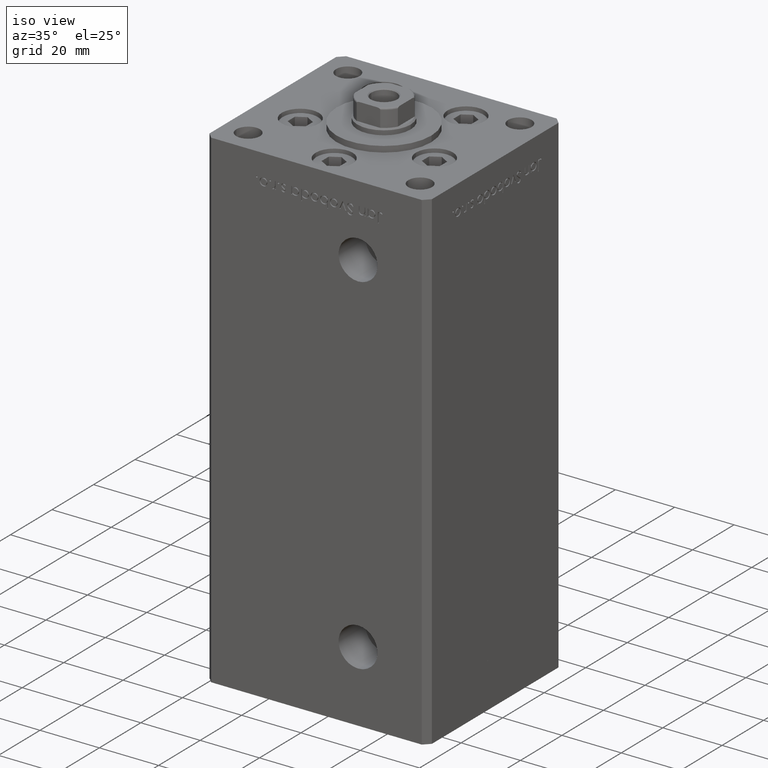
[diagram: clean part render]
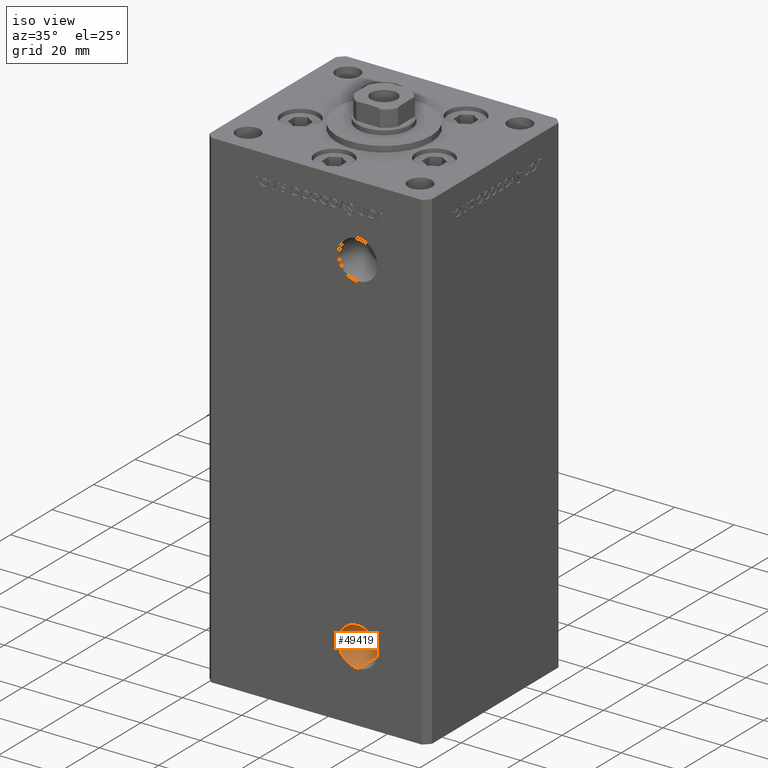
[diagram: same view with one face highlighted and labeled with its STEP entity id]
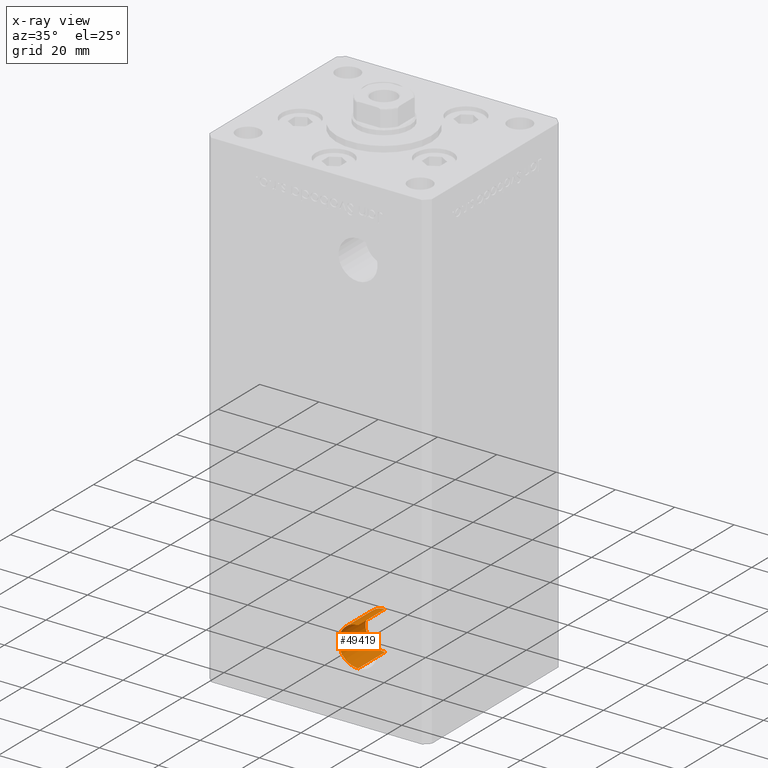
[diagram: x-ray of the same camera — body ghosted, the highlighted face saturated]
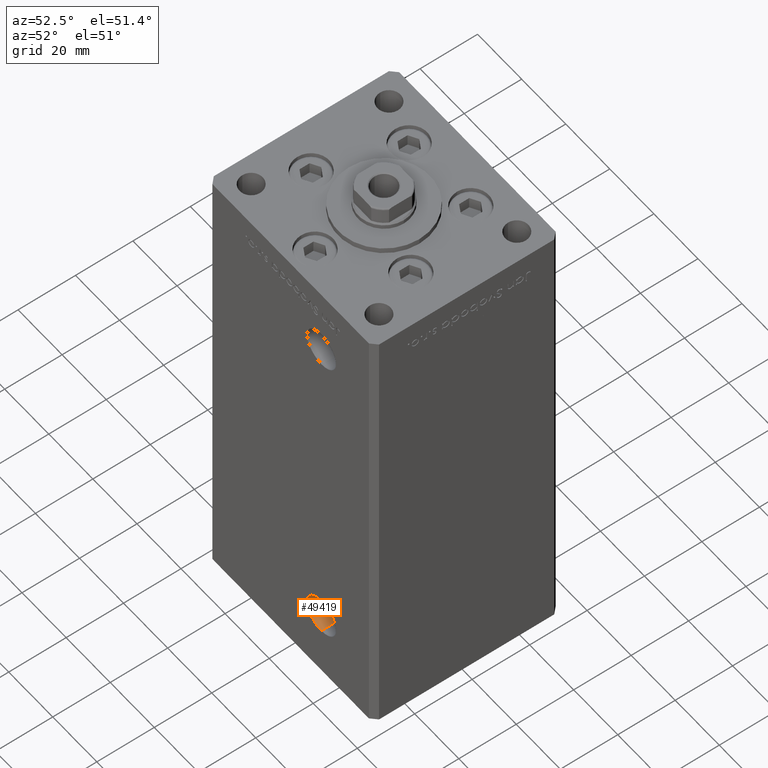
[diagram: same view with one face highlighted and labeled with its STEP entity id]
A machine part, iso view. The second image highlights one B-rep face of the part: STEP entity #49419.
The next image is the same camera in x-ray: the body ghosted, the highlighted face saturated — about 0% of this face is hidden behind the body in this view.
A second angle (auxiliary view) of the same face is appended — the face is thin or edge-on in the first view.
In plain terms, the highlighted cylindrical surface (edge-blend (fillet) strip) has radius 6.58 mm, axis along (-0, -1, -0).
Its self-contained STEP definition (entity closure, byte-faithful):
#4775 = ORIENTED_EDGE ( 'NONE', *, *, #51825, .T. ) ;
#7288 = CARTESIAN_POINT ( 'NONE',  ( 13.99999999999999112, -32.50000000000000000, 2.420000000000009699 ) ) ;
#9250 = VERTEX_POINT ( 'NONE', #37779 ) ;
#9274 = DIRECTION ( 'NONE',  ( 0.000000000000000000, 0.000000000000000000, -1.000000000000000000 ) ) ;
#11104 = DIRECTION ( 'NONE',  ( 0.000000000000000000, 0.000000000000000000, -1.000000000000000000 ) ) ;
#12977 = FACE_OUTER_BOUND ( 'NONE', #30950, .T. ) ;
#19377 = CARTESIAN_POINT ( 'NONE',  ( 13.99999999999999112, -19.50000000000000355, 9.000000000000007105 ) ) ;
#19742 = DIRECTION ( 'NONE',  ( -0.000000000000000000, -1.000000000000000000, -0.000000000000000000 ) ) ;
#21323 = VERTEX_POINT ( 'NONE', #37180 ) ;
#21420 = CARTESIAN_POINT ( 'NONE',  ( 13.99999999999999112, -32.50000000000000000, 9.000000000000007105 ) ) ;
#25337 = CIRCLE ( 'NONE', #44700, 6.579999999999998295 ) ;
#25385 = CYLINDRICAL_SURFACE ( 'NONE', #51663, 6.579999999999998295 ) ;
#25940 = LINE ( 'NONE', #33874, #45566 ) ;
#26349 = ORIENTED_EDGE ( 'NONE', *, *, #37948, .T. ) ;
#26472 = ORIENTED_EDGE ( 'NONE', *, *, #37718, .F. ) ;
#27925 = LINE ( 'NONE', #39815, #33821 ) ;
#29347 = CARTESIAN_POINT ( 'NONE',  ( 13.99999999999999112, -19.50000000000000355, 9.000000000000007105 ) ) ;
#29828 = CIRCLE ( 'NONE', #33181, 6.579999999999998295 ) ;
#30361 = VERTEX_POINT ( 'NONE', #37607 ) ;
#30950 = EDGE_LOOP ( 'NONE', ( #26472, #26349, #4775, #43275 ) ) ;
#31133 = VERTEX_POINT ( 'NONE', #7288 ) ;
#33181 = AXIS2_PLACEMENT_3D ( 'NONE', #21420, #37536, #11104 ) ;
#33821 = VECTOR ( 'NONE', #19742, 1000.000000000000000 ) ;
#33874 = CARTESIAN_POINT ( 'NONE',  ( 13.99999999999999112, -19.50000000000000355, 15.58000000000000718 ) ) ;
#37180 = CARTESIAN_POINT ( 'NONE',  ( 13.99999999999999112, -32.50000000000000000, 15.58000000000000718 ) ) ;
#37536 = DIRECTION ( 'NONE',  ( 0.000000000000000000, -1.000000000000000000, 0.000000000000000000 ) ) ;
#37607 = CARTESIAN_POINT ( 'NONE',  ( 13.99999999999999112, -19.50000000000000355, 15.58000000000000718 ) ) ;
#37718 = EDGE_CURVE ( 'NONE', #30361, #9250, #25337, .T. ) ;
#37779 = CARTESIAN_POINT ( 'NONE',  ( 13.99999999999999112, -19.50000000000000355, 2.420000000000009699 ) ) ;
#37948 = EDGE_CURVE ( 'NONE', #30361, #21323, #25940, .T. ) ;
#39815 = CARTESIAN_POINT ( 'NONE',  ( 13.99999999999999112, -19.50000000000000355, 2.420000000000009699 ) ) ;
#42894 = DIRECTION ( 'NONE',  ( 0.000000000000000000, -1.000000000000000000, 0.000000000000000000 ) ) ;
#43275 = ORIENTED_EDGE ( 'NONE', *, *, #44908, .F. ) ;
#44700 = AXIS2_PLACEMENT_3D ( 'NONE', #19377, #42894, #51324 ) ;
#44908 = EDGE_CURVE ( 'NONE', #9250, #31133, #27925, .T. ) ;
#45441 = DIRECTION ( 'NONE',  ( -0.000000000000000000, -1.000000000000000000, -0.000000000000000000 ) ) ;
#45566 = VECTOR ( 'NONE', #49959, 1000.000000000000000 ) ;
#49419 = ADVANCED_FACE ( 'NONE', ( #12977 ), #25385, .F. ) ;
#49959 = DIRECTION ( 'NONE',  ( -0.000000000000000000, -1.000000000000000000, -0.000000000000000000 ) ) ;
#51324 = DIRECTION ( 'NONE',  ( 0.000000000000000000, 0.000000000000000000, -1.000000000000000000 ) ) ;
#51663 = AXIS2_PLACEMENT_3D ( 'NONE', #29347, #45441, #9274 ) ;
#51825 = EDGE_CURVE ( 'NONE', #21323, #31133, #29828, .T. ) ;